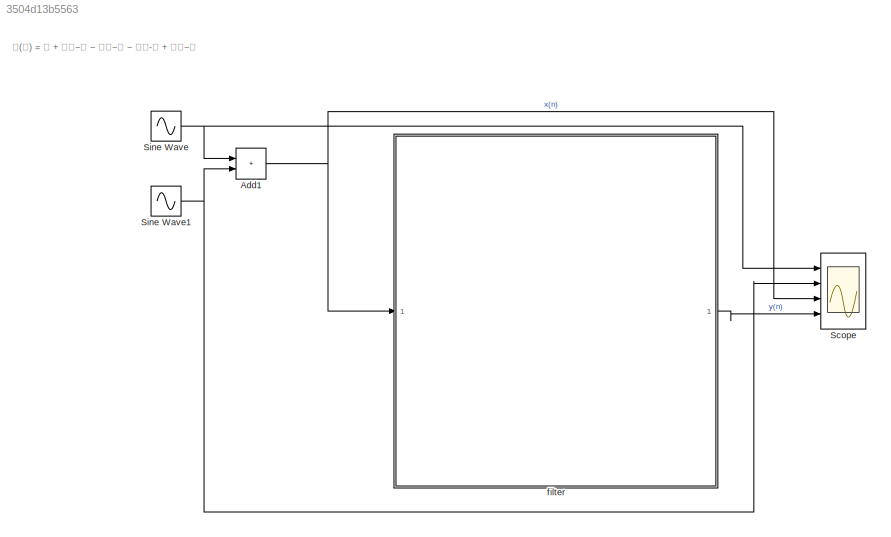
MODEL slx_3504d13b5563
KIND model
CONFIG AbsTol = auto
CONFIG EnableMultiTasking = off
CONFIG FixedStep = auto
CONFIG MaxStep = auto
CONFIG MinStep = auto
CONFIG RelTol = 1e-3
CONFIG SampleTimeConstraint = Unconstrained
CONFIG SolverName = VariableStepAuto
CONFIG StartTime = 0.0
CONFIG StopTime = 10.0
BLOCK [Sum] Add1
  IconShape = rectangular
  Ports = [2, 1]
BLOCK [Scope] Scope
  Floating = off
  NumInputPorts = 4
  Ports = [4]
  ScopeSpecificationString = Simulink.scopes.TimeScopeBlockCfg('CurrentConfiguration', extmgr.ConfigurationSet(extmgr.Configuration('Core','General UI',true),extmgr.Configuration('Core','Source UI',true),extmgr.Configuration('Sources','WiredSimulink',true),extmgr.Configuration('Visuals','Time Domain',true,'SerializedDisplays',{struct('MinYLimReal','-1.25','MaxYLimReal','1.25','YLabelReal','','MinYLimMag','0.00000','MaxYLimMag...<+3385ch>
BLOCK [Sin] Sine Wave
  Ports = [0, 1]
  SampleTime = 0
BLOCK [Sin] Sine Wave1
  Amplitude = 0.5
  Frequency = 50
  Ports = [0, 1]
  SampleTime = 0
BLOCK [ModelReference] filter    
  ModelNameDialog = reference_filter_1_6
  ModelReferenceVersion = 1.4
  Ports = [1, 1]
ANNOTATION (root): 𝐇(𝐳) = 𝟏 + 𝟐𝐳−𝟏 − 𝟑𝐳−𝟐 − 𝟒𝐳-𝟑 + 𝟓𝐳−𝟒
NET Add1:1 -> Scope:3, filter    :1
NET Sine Wave1:1 -> Add1:2, Scope:2
NET Sine Wave:1 -> Add1:1, Scope:1
LINE filter    :1 -> Scope:4
note: NET lines group one-source signal fan-out (src -> all destinations, sorted); 1:1 wires keep LINE
